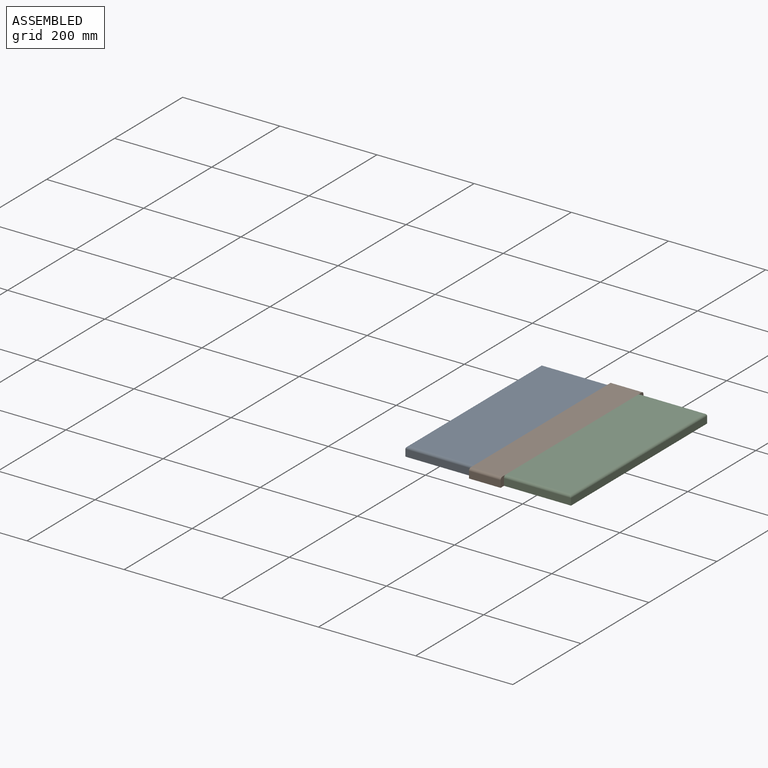
[diagram: assembled view]
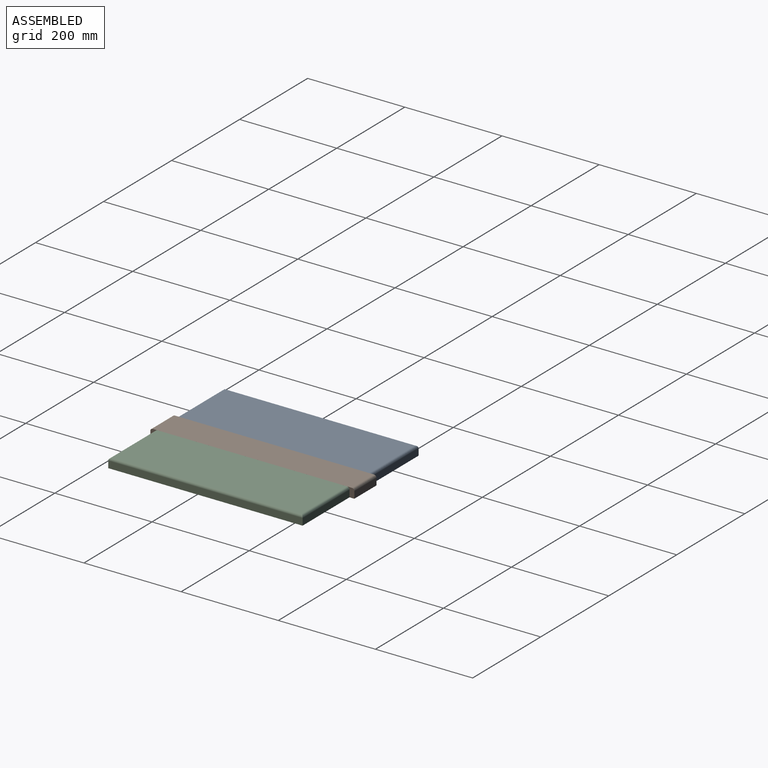
[diagram: assembled view, second angle]
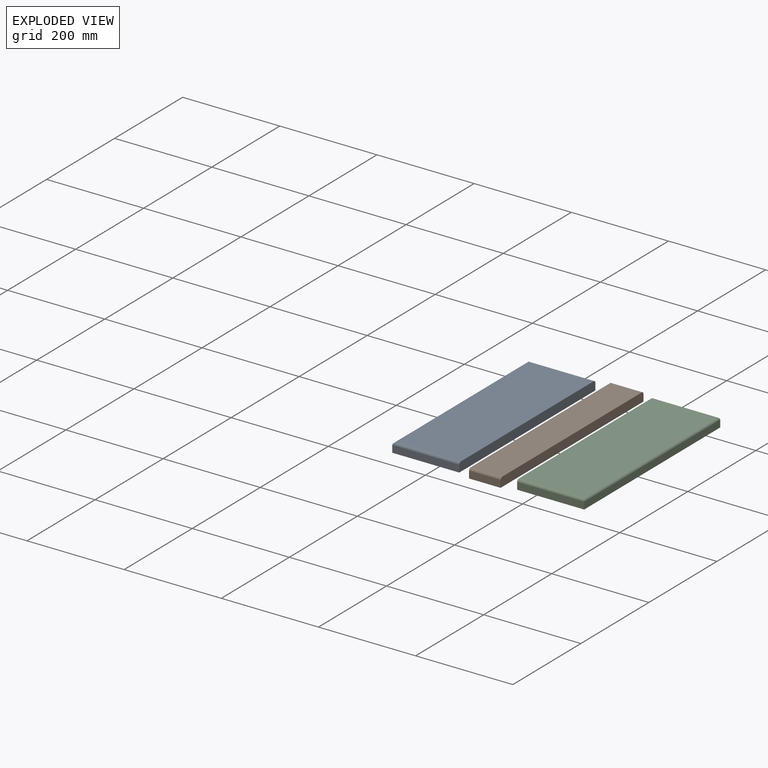
[diagram: exploded view]
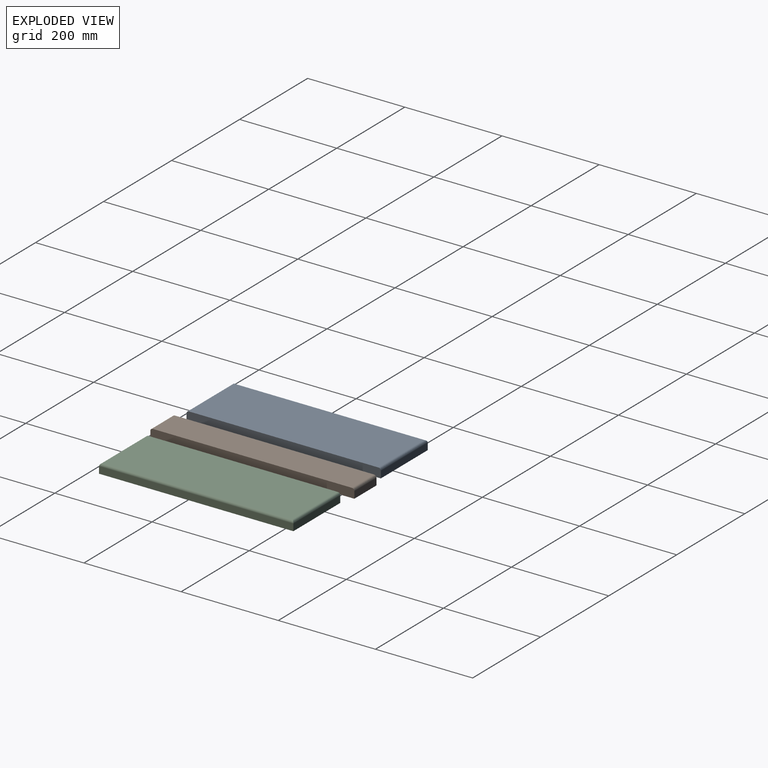
[diagram: exploded view, second angle]
ASSEMBLY  parts=3 mates=2
PART A: 9 faces, bbox 138x400x19 mm
  f0: plane 138x14mm, normal (0,1,0), area 1932mm2, adj f1,f3,f5,f6
  f1: plane 400x14mm, normal (-1,0,0), area 5600mm2, adj f0,f2,f5,f7
  f2: plane 138x14mm, normal (0,-1,0), area 1932mm2, adj f1,f3,f5,f8
  f3: plane 400x19mm, normal (1,0,0), area 7589.3mm2, adj f0,f2,f4,f5,f6,f8
  f4: plane 390x133mm, normal (0,0,1), area 51870mm2, adj f3,f6,f7,f8
  f5: plane 400x138mm, normal (0,0,-1), area 55200mm2, adj f0,f1,f2,f3
  f6: cylinder r=5mm len=138mm, axis (1,0,0), area 1069.6mm2, adj f0,f3,f4,f7
  f7: cylinder r=5mm len=400mm, axis (0,1,0), area 3113.1mm2, adj f1,f4,f6,f8
  f8: cylinder r=5mm len=138mm, axis (-1,0,0), area 1069.6mm2, adj f2,f3,f4,f7
PART B: 8 faces, bbox 65x419.9x19 mm
  f0: plane 65x14mm, normal (0,1,0), area 910mm2, adj f1,f3,f5,f7
  f1: plane 419.87x19mm, normal (-1,0,0), area 7966.8mm2, adj f0,f2,f4,f5,f6,f7
  f2: plane 65x14mm, normal (0,-1,0), area 910mm2, adj f1,f3,f5,f6
  f3: plane 419.87x19mm, normal (1,0,0), area 7966.8mm2, adj f0,f2,f4,f5,f6,f7
  f4: plane 409.87x65mm, normal (0,0,1), area 26641.7mm2, adj f1,f3,f6,f7
  f5: plane 419.87x65mm, normal (0,0,-1), area 27291.7mm2, adj f0,f1,f2,f3
  f6: cylinder r=5mm len=65mm, axis (-1,0,0), area 510.5mm2, adj f1,f2,f3,f4
  f7: cylinder r=5mm len=65mm, axis (1,0,0), area 510.5mm2, adj f0,f1,f3,f4
PART C: 9 faces, bbox 138x400x19 mm
  f0: plane 138x14mm, normal (0,1,0), area 1932mm2, adj f1,f3,f5,f6
  f1: plane 400x19mm, normal (-1,0,0), area 7589.3mm2, adj f0,f2,f4,f5,f6,f8
  f2: plane 138x14mm, normal (0,-1,0), area 1932mm2, adj f1,f3,f5,f8
  f3: plane 400x14mm, normal (1,0,0), area 5600mm2, adj f0,f2,f5,f7
  f4: plane 390x133mm, normal (0,0,1), area 51870mm2, adj f1,f6,f7,f8
  f5: plane 400x138mm, normal (0,0,-1), area 55200mm2, adj f0,f1,f2,f3
  f6: cylinder r=5mm len=138mm, axis (1,0,0), area 1069.6mm2, adj f0,f1,f4,f7
  f7: cylinder r=5mm len=400mm, axis (0,-1,0), area 3113.1mm2, adj f3,f4,f6,f8
  f8: cylinder r=5mm len=138mm, axis (-1,0,0), area 1069.6mm2, adj f1,f2,f4,f7
PLACE A t=(78.05,45.89,-13.86)mm
PLACE B t=(189.63,24.94,-13.86)mm
PLACE C t=(189.85,17.61,-13.86)mm
MATE ball B.f3 <-> C.f1  axis (1,0,0) through (143.05,26.7,-4.37)mm
MATE ball B.f1 <-> A.f3  axis (-1,0,0) through (78.05,26.7,-4.37)mm
